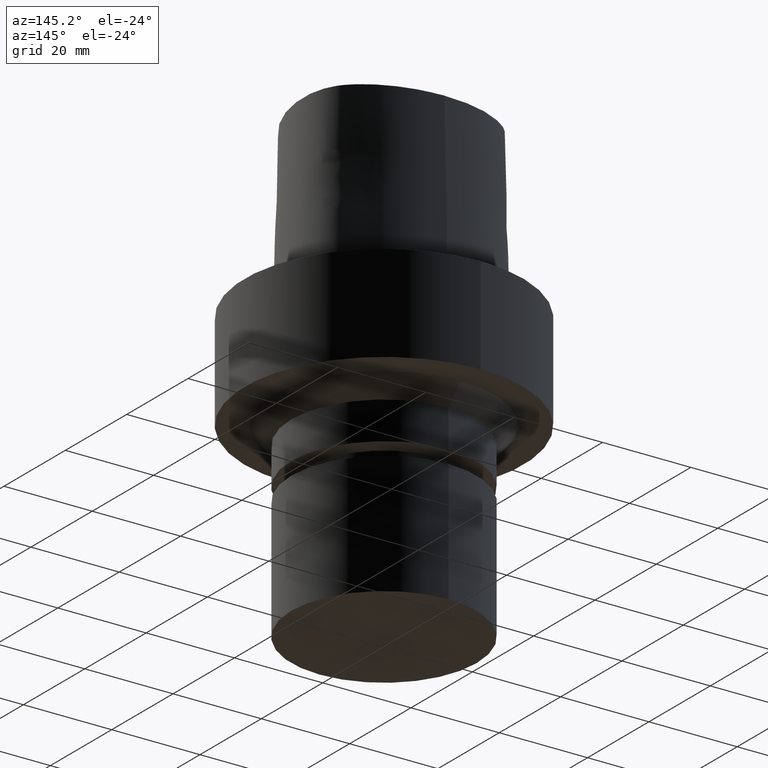
[diagram: clean part render]
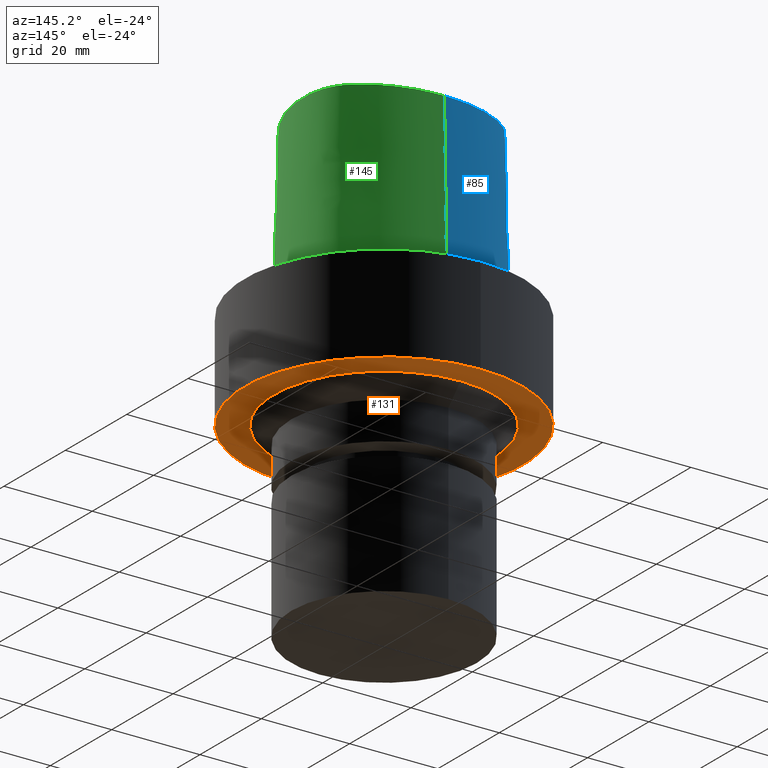
[diagram: same view with three faces highlighted in distinct colors, each labeled with its STEP entity id]
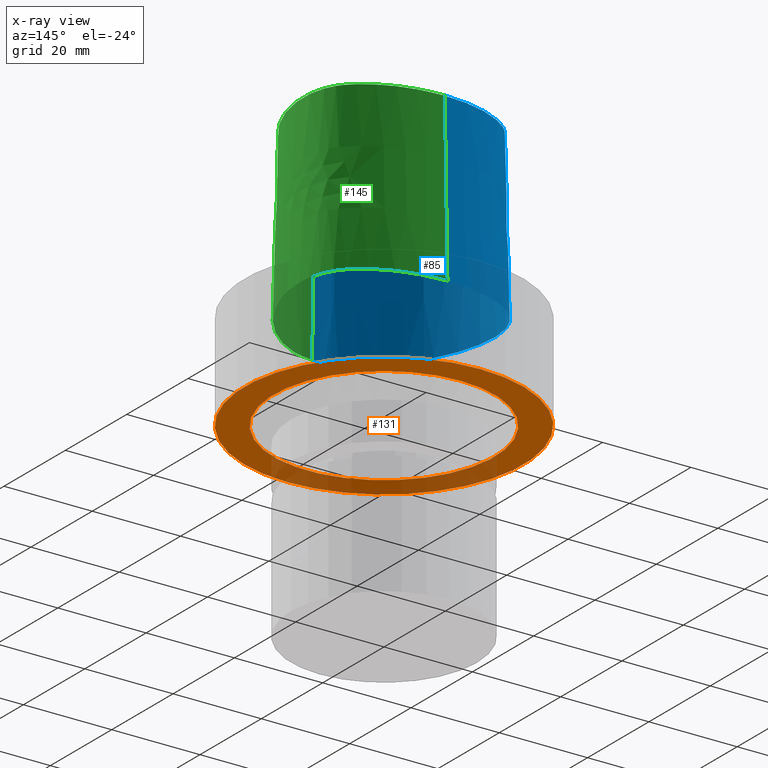
[diagram: x-ray of the same camera — body ghosted, the three highlighted faces saturated]
A machine part, auxiliary view with three faces highlighted in distinct colors.
The next image is the same camera in x-ray (body ghosted, the three faces saturated) — at least one of them is partly hidden behind the body in this view.
Their STEP definitions:

[orange] entity #131 — the highlighted planar face has unit normal (0, -0, -1).
#125=EDGE_CURVE('Unnamed[1]',#266,#266,#267,.T.);
#131=ADVANCED_FACE('Unnamed[1]',(#274,#275),#276,.T.);
#169=EDGE_CURVE('Unnamed[1]',#332,#332,#333,.T.);
#266=VERTEX_POINT('',#551);
#267=CIRCLE('',#552,31.5);
#274=FACE_BOUND('',#561,.T.);
#275=FACE_OUTER_BOUND('',#562,.T.);
#276=PLANE('',#563);
#332=VERTEX_POINT('',#730);
#333=CIRCLE('',#731,25.0000000000002);
#551=CARTESIAN_POINT('',(1.34711147906212E-015,31.5,-22.0000000000006));
#552=AXIS2_PLACEMENT_3D('',#810,#811,#812);
#561=EDGE_LOOP('',(#819));
#562=EDGE_LOOP('',(#820));
#563=AXIS2_PLACEMENT_3D('',#821,#822,#823);
#730=CARTESIAN_POINT('',(1.34711147906212E-015,25.0000000000003,-22.0000000000005));
#731=AXIS2_PLACEMENT_3D('',#881,#882,#883);
#810=CARTESIAN_POINT('',(1.34711147906212E-015,2.69422295812425E-015,-22.0000000000006));
#811=DIRECTION('',(6.12323399573677E-017,1.22464679914735E-016,-1.0));
#812=DIRECTION('',(-1.23259516440783E-032,1.0,1.22464679914735E-016));
#819=ORIENTED_EDGE('',*,*,#169,.F.);
#820=ORIENTED_EDGE('',*,*,#125,.T.);
#821=CARTESIAN_POINT('',(1.34711147906212E-015,28.2500000000001,-22.0000000000005));
#822=DIRECTION('',(6.12323399573677E-017,-5.88982000728634E-015,-1.0));
#823=DIRECTION('',(3.55820308243094E-031,1.0,-5.88982000728634E-015));
#881=CARTESIAN_POINT('',(1.34711147906212E-015,2.69422295812424E-015,-22.0000000000005));
#882=DIRECTION('',(6.12323399573677E-017,1.22464679914735E-016,-1.0));
#883=DIRECTION('',(-1.23259516440783E-032,1.0,1.22464679914735E-016));

[blue] entity #85 — the highlighted face is a freeform B-spline surface patch.
#85=ADVANCED_FACE('Unnamed[1]',(#211),#212,.T.);
#90=EDGE_CURVE('Unnamed[1]',#207,#203,#218,.T.);
#101=EDGE_CURVE('Unnamed[1]',#232,#203,#233,.T.);
#147=EDGE_CURVE('Unnamed[1]',#288,#232,#298,.T.);
#149=EDGE_CURVE('Unnamed[1]',#207,#288,#300,.T.);
#203=VERTEX_POINT('',#364);
#207=VERTEX_POINT('',#369);
#211=FACE_OUTER_BOUND('',#375,.T.);
#212=B_SPLINE_SURFACE_WITH_KNOTS('',3,3,((#376,#377,#378,#379),(#380,#381,#382,#383),(#384,#385,#386,#387),(#388,#389,#390,#391),(#392,#393,#394,#395),(#396,#397,#398,#399),(#400,#401,#402,#403),(#404,#405,#406,#407),(#408,#409,#410,#411),(#412,#413,#414,#415),(#416,#417,#418,#419),(#420,#421,#422,#423),(#424,#425,#426,#427),(#428,#429,#430,#431),(#432,#433,#434,#435),(#436,#437,#438,#439),(#440,#441,#442,#443),(#444,#445,#446,#447)),.UNSPECIFIED.,.F.,.F.,.F.,(4,1,1,1,1,1,1,1,1,2,1,1,1,1,4),(4,4),(-6.6151339308743,-6.20168806019465,-5.78824218951501,-5.37479631883537,-4.96135044815572,-4.13445870679644,-3.30756696543715,-2.89412109475751,-2.48067522407786,-2.06722935339822,-1.65378348271857,-1.24033761203893,-0.826891741359287,-0.413445870679644,0.0),(-3.8,0.0),.UNSPECIFIED.);
#218=LINE('',#455,#456);
#232=VERTEX_POINT('',#474);
#233=B_SPLINE_CURVE_WITH_KNOTS('',3,(#475,#476,#477,#478,#479,#480,#481,#482,#483,#484,#485,#486,#487,#488,#489,#490,#491,#492),.UNSPECIFIED.,.F.,.F.,(4,1,1,1,1,1,1,1,1,2,1,1,1,1,4),(-6.6151339308743,-6.20168806019465,-5.78824218951501,-5.37479631883537,-4.96135044815572,-4.13445870679644,-3.30756696543715,-2.89412109475751,-2.48067522407786,-2.06722935339822,-1.65378348271857,-1.24033761203893,-0.826891741359287,-0.413445870679644,0.0),.UNSPECIFIED.);
#288=VERTEX_POINT('',#578);
#298=LINE('',#672,#673);
#300=B_SPLINE_CURVE_WITH_KNOTS('',3,(#676,#677,#678,#679,#680,#681,#682,#683,#684,#685,#686,#687,#688,#689,#690,#691),.UNSPECIFIED.,.F.,.F.,(4,1,1,1,1,1,1,1,1,1,1,1,1,4),(0.0,0.447924670568964,0.9388024242536,1.50591409090711,2.07314340012323,2.72424957442464,3.2253501842849,3.80982102049476,4.34867996267067,4.85900173381144,5.37972031856977,6.03459825488646,6.61113557741484,6.61513393087395),.UNSPECIFIED.);
#364=CARTESIAN_POINT('',(-0.045171994691285,20.6766009553285,1.6755590516169E-031));
#369=CARTESIAN_POINT('',(-0.001218547003662,19.7276821925089,38.0));
#375=EDGE_LOOP('',(#754,#755,#756,#757));
#376=CARTESIAN_POINT('',(0.038736923393866,-22.5191997536361,38.0));
#377=CARTESIAN_POINT('',(0.04035580478973,-22.8358410047159,25.3333333333066));
#378=CARTESIAN_POINT('',(0.041974686185626,-23.1524822558133,12.6666666666934));
#379=CARTESIAN_POINT('',(0.04359356758149,-23.4691235068931,7.78075697532443E-032));
#380=CARTESIAN_POINT('',(-1.33786123484754,-22.5261650259856,38.0));
#381=CARTESIAN_POINT('',(-1.38240731367927,-22.8430399310626,25.3333333333066));
#382=CARTESIAN_POINT('',(-1.42695339249092,-23.1599147815484,12.6666666666934));
#383=CARTESIAN_POINT('',(-1.4714994713963,-23.4767895315797,2.46519032881566E-032));
#384=CARTESIAN_POINT('',(-4.08909358431842,-21.9268839879558,38.0));
#385=CARTESIAN_POINT('',(-4.20580731135515,-22.2249725500078,25.3333333333066));
#386=CARTESIAN_POINT('',(-4.32252104640446,-22.5230611651922,12.6666666666934));
#387=CARTESIAN_POINT('',(-4.43923476371401,-22.821149804767,-4.93038065763132E-032));
#388=CARTESIAN_POINT('',(-7.8333083619947,-19.9973514861616,38.0));
#389=CARTESIAN_POINT('',(-8.00568301809614,-20.2649260859405,25.3333333333066));
#390=CARTESIAN_POINT('',(-8.1780576640789,-20.532500564315,12.6666666666934));
#391=CARTESIAN_POINT('',(-8.35043230079961,-20.8000751253325,-9.86076131526265E-032));
#392=CARTESIAN_POINT('',(-11.1035071147626,-17.450554957873,38.0));
#393=CARTESIAN_POINT('',(-11.3173048160562,-17.6855739222454,25.3333333333066));
#394=CARTESIAN_POINT('',(-11.5311025116181,-17.9205928617968,12.6666666666934));
#395=CARTESIAN_POINT('',(-11.744900222602,-18.1556117874078,-1.97215226305253E-031));
#396=CARTESIAN_POINT('',(-14.9379535189057,-13.461132049697,38.0));
#397=CARTESIAN_POINT('',(-15.191622410671,-13.6542981711372,25.3333333333066));
#398=CARTESIAN_POINT('',(-15.4452913389853,-13.8474645327131,12.6666666666934));
#399=CARTESIAN_POINT('',(-15.6989602501314,-14.0406306929147,-1.97215226305253E-031));
#400=CARTESIAN_POINT('',(-18.6681263017223,-7.59391757463204,38.0));
#401=CARTESIAN_POINT('',(-18.9571800800711,-7.73136168081928,25.3333333333066));
#402=CARTESIAN_POINT('',(-19.2462337287194,-7.86880572399774,12.6666666666934));
#403=CARTESIAN_POINT('',(-19.5352875070682,-8.00624990770787,1.97215226305253E-031));
#404=CARTESIAN_POINT('',(-20.7857899858339,-0.952862819790525,38.0));
#405=CARTESIAN_POINT('',(-21.0973808305434,-1.02218087467418,25.3333333333066));
#406=CARTESIAN_POINT('',(-21.408971677436,-1.09149899580772,12.6666666666934));
#407=CARTESIAN_POINT('',(-21.7205626190491,-1.16081708945282,0.0));
#408=CARTESIAN_POINT('',(-21.2911760556836,4.5469215763113,38.0));
#409=CARTESIAN_POINT('',(-21.610337904926,4.54783292082248,25.3333333333066));
#410=CARTESIAN_POINT('',(-21.9294998290918,4.54874426225691,12.6666666666934));
#411=CARTESIAN_POINT('',(-22.2486616783342,4.54965558738736,0.0));
#412=CARTESIAN_POINT('',(-20.7345309521958,8.74909381391006,38.0));
#413=CARTESIAN_POINT('',(-21.0445680426217,8.83349432450556,25.3333333333066));
#414=CARTESIAN_POINT('',(-21.3546050933631,8.91789488065068,12.6666666666934));
#415=CARTESIAN_POINT('',(-21.6646421256468,9.00229539124618,0.0));
#416=CARTESIAN_POINT('',(-19.5531512296439,11.3174844040833,38.0));
#417=CARTESIAN_POINT('',(-19.8336219699984,11.4710077674213,25.3333333333066));
#418=CARTESIAN_POINT('',(-20.1140927680763,11.6245311337623,12.6666666666934));
#419=CARTESIAN_POINT('',(-20.3945635471922,11.7780544971003,0.0));
#420=CARTESIAN_POINT('',(-17.9100913688793,13.524027510437,38.0));
#421=CARTESIAN_POINT('',(-18.1375785458768,13.7487051053655,25.3333333333066));
#422=CARTESIAN_POINT('',(-18.365065665211,13.9733826973296,12.6666666666934));
#423=CARTESIAN_POINT('',(-18.5925528034471,14.1980602922581,0.0));
#424=CARTESIAN_POINT('',(-15.7996349656398,15.3762170634413,38.0));
#425=CARTESIAN_POINT('',(-15.9739761051783,15.6434029846179,25.3333333333066));
#426=CARTESIAN_POINT('',(-16.1483172726872,15.9105889315134,12.6666666666934));
#427=CARTESIAN_POINT('',(-16.3226584122258,16.1777748720707,0.0));
#428=CARTESIAN_POINT('',(-12.1175640002064,17.3825162484012,38.0));
#429=CARTESIAN_POINT('',(-12.2475895903055,17.6724842099619,25.3333333333066));
#430=CARTESIAN_POINT('',(-12.3776152070492,17.9624521925696,12.6666666666934));
#431=CARTESIAN_POINT('',(-12.5076407874579,18.2524201541303,9.86076131526265E-032));
#432=CARTESIAN_POINT('',(-8.21761151654222,18.7588585989994,38.0));
#433=CARTESIAN_POINT('',(-8.30099497910627,19.0656105427881,25.3333333333066));
#434=CARTESIAN_POINT('',(-8.38437843913309,19.3723624535439,12.6666666666934));
#435=CARTESIAN_POINT('',(-8.46776192107786,19.679114377952,9.86076131526265E-032));
#436=CARTESIAN_POINT('',(-4.13466093881225,19.5396850837055,38.0));
#437=CARTESIAN_POINT('',(-4.16658562115465,19.8557172636973,25.3333333333066));
#438=CARTESIAN_POINT('',(-4.19851029939059,20.1717494367229,12.6666666666934));
#439=CARTESIAN_POINT('',(-4.23043497193604,20.487781597334,1.97215226305253E-031));
#440=CARTESIAN_POINT('',(-1.37917220403684,19.6638560588908,38.0));
#441=CARTESIAN_POINT('',(-1.39382511685176,19.98016223565,25.3333333333066));
#442=CARTESIAN_POINT('',(-1.40847802945569,20.296468399885,12.6666666666934));
#443=CARTESIAN_POINT('',(-1.42313094248379,20.6127745766442,1.10933564796705E-031));
#444=CARTESIAN_POINT('',(-0.001218547003662,19.7276821925089,38.0));
#445=CARTESIAN_POINT('',(-0.015869696232855,20.043988446791,25.3333333333066));
#446=CARTESIAN_POINT('',(-0.030520845462092,20.3602947010464,12.6666666666934));
#447=CARTESIAN_POINT('',(-0.045171994691285,20.6766009553285,1.6755590516169E-031));
#455=CARTESIAN_POINT('',(-0.001218547003662,19.7276821925089,38.0));
#456=VECTOR('',#763,38.0118715498723);
#474=CARTESIAN_POINT('',(0.04359356758149,-23.4691235068931,7.78075697532443E-032));
#475=CARTESIAN_POINT('',(0.04359356758149,-23.4691235068931,7.78075697532443E-032));
#476=CARTESIAN_POINT('',(-1.4714994713963,-23.4767895315797,2.46519032881566E-032));
#477=CARTESIAN_POINT('',(-4.43923476371401,-22.821149804767,-4.93038065763132E-032));
#478=CARTESIAN_POINT('',(-8.35043230079961,-20.8000751253325,-9.86076131526265E-032));
#479=CARTESIAN_POINT('',(-11.744900222602,-18.1556117874078,-1.97215226305253E-031));
#480=CARTESIAN_POINT('',(-15.6989602501314,-14.0406306929147,-1.97215226305253E-031));
#481=CARTESIAN_POINT('',(-19.5352875070682,-8.00624990770787,1.97215226305253E-031));
#482=CARTESIAN_POINT('',(-21.7205626190491,-1.16081708945282,0.0));
#483=CARTESIAN_POINT('',(-22.2486616783342,4.54965558738736,0.0));
#484=CARTESIAN_POINT('',(-21.6646421256468,9.00229539124618,0.0));
#485=CARTESIAN_POINT('',(-20.3945635471922,11.7780544971003,0.0));
#486=CARTESIAN_POINT('',(-18.5925528034471,14.1980602922581,0.0));
#487=CARTESIAN_POINT('',(-16.3226584122258,16.1777748720707,0.0));
#488=CARTESIAN_POINT('',(-12.5076407874579,18.2524201541303,9.86076131526265E-032));
#489=CARTESIAN_POINT('',(-8.46776192107786,19.679114377952,9.86076131526265E-032));
#490=CARTESIAN_POINT('',(-4.23043497193604,20.487781597334,1.97215226305253E-031));
#491=CARTESIAN_POINT('',(-1.42313094248379,20.6127745766442,1.10933564796705E-031));
#492=CARTESIAN_POINT('',(-0.045171994691285,20.6766009553285,1.6755590516169E-031));
#578=CARTESIAN_POINT('',(0.038736923393866,-22.5191997536361,38.0));
#672=CARTESIAN_POINT('',(0.038736923393866,-22.5191997536361,38.0));
#673=VECTOR('',#842,38.0118715498723);
#676=CARTESIAN_POINT('',(-0.001218547003662,19.7276821925089,38.0));
#677=CARTESIAN_POINT('',(-1.49408492138443,19.6585333605309,38.0));
#678=CARTESIAN_POINT('',(-4.62297391420352,19.513604770166,38.0));
#679=CARTESIAN_POINT('',(-9.56160616752212,18.4291575730197,38.0));
#680=CARTESIAN_POINT('',(-14.5427684976927,16.2697452580488,38.0));
#681=CARTESIAN_POINT('',(-19.4315563551602,12.5302108980807,38.0));
#682=CARTESIAN_POINT('',(-21.306358833612,6.76352894547076,38.0));
#683=CARTESIAN_POINT('',(-21.0724946936277,0.957075236984038,38.0));
#684=CARTESIAN_POINT('',(-19.7876470880144,-4.34628503581652,38.0));
#685=CARTESIAN_POINT('',(-17.5396999600095,-9.33314444653089,38.0));
#686=CARTESIAN_POINT('',(-14.645447733857,-13.7185760345629,38.0));
#687=CARTESIAN_POINT('',(-10.7996726536643,-17.856257282137,38.0));
#688=CARTESIAN_POINT('',(-6.00479510196376,-21.2687382067675,38.0));
#689=CARTESIAN_POINT('',(-1.90747171908525,-22.5250621415864,38.0));
#690=CARTESIAN_POINT('',(0.025424107066464,-22.5192678176378,38.0));
#691=CARTESIAN_POINT('',(0.038736923394311,-22.519199753636,38.0));
#754=ORIENTED_EDGE('',*,*,#101,.F.);
#755=ORIENTED_EDGE('',*,*,#147,.F.);
#756=ORIENTED_EDGE('',*,*,#149,.F.);
#757=ORIENTED_EDGE('',*,*,#90,.T.);
#763=DIRECTION('',(-0.001156308434589,0.02496374748543,-0.999687688361864));
#842=DIRECTION('',(0.000127766510556,-0.024990186342461,-0.999687688361864));

[green] entity #145 — the highlighted face is a freeform B-spline surface patch.
#82=EDGE_CURVE('Unnamed[1]',#207,#204,#208,.T.);
#116=EDGE_CURVE('Unnamed[1]',#204,#232,#254,.T.);
#139=EDGE_CURVE('Unnamed[1]',#288,#207,#289,.T.);
#145=ADVANCED_FACE('Unnamed[1]',(#295),#296,.T.);
#147=EDGE_CURVE('Unnamed[1]',#288,#232,#298,.T.);
#204=VERTEX_POINT('',#365);
#207=VERTEX_POINT('',#369);
#208=LINE('',#370,#371);
#232=VERTEX_POINT('',#474);
#254=B_SPLINE_CURVE_WITH_KNOTS('',3,(#519,#520,#521,#522,#523,#524,#525,#526,#527,#528,#529,#530,#531,#532,#533,#534,#535),.UNSPECIFIED.,.F.,.F.,(4,1,1,1,1,1,1,1,1,1,1,1,1,1,4),(-13.2302678617486,-12.816821991069,-12.4033761203893,-11.9899302497097,-11.57648437903,-11.1630385083504,-10.9563155730106,-10.7495926376707,-10.3361467669911,-9.92270089631145,-9.09580915495216,-8.26891741359287,-7.44202567223358,-7.02857980155394,-6.6151339308743),.UNSPECIFIED.);
#288=VERTEX_POINT('',#578);
#289=B_SPLINE_CURVE_WITH_KNOTS('',3,(#579,#580,#581,#582,#583,#584,#585,#586,#587,#588,#589,#590,#591,#592,#593,#594),.UNSPECIFIED.,.F.,.F.,(4,1,1,1,1,1,1,1,1,1,1,1,1,4),(6.61513393087476,6.99917207152274,7.48193246986995,7.96289324787093,8.45540287038584,9.10291653679981,9.67129810936083,10.1618749681153,10.6358867802489,11.1080734988593,11.6043706019633,12.09451993853,12.6985979284494,13.2302678617486),.UNSPECIFIED.);
#295=FACE_OUTER_BOUND('',#601,.T.);
#296=B_SPLINE_SURFACE_WITH_KNOTS('',3,3,((#602,#603,#604,#605),(#606,#607,#608,#609),(#610,#611,#612,#613),(#614,#615,#616,#617),(#618,#619,#620,#621),(#622,#623,#624,#625),(#626,#627,#628,#629),(#630,#631,#632,#633),(#634,#635,#636,#637),(#638,#639,#640,#641),(#642,#643,#644,#645),(#646,#647,#648,#649),(#650,#651,#652,#653),(#654,#655,#656,#657),(#658,#659,#660,#661),(#662,#663,#664,#665),(#666,#667,#668,#669)),.UNSPECIFIED.,.F.,.F.,.F.,(4,1,1,1,1,1,1,1,1,1,1,1,1,1,4),(4,4),(-13.2302678617486,-12.816821991069,-12.4033761203893,-11.9899302497097,-11.57648437903,-11.1630385083504,-10.9563155730106,-10.7495926376707,-10.3361467669911,-9.92270089631145,-9.09580915495216,-8.26891741359287,-7.44202567223358,-7.02857980155394,-6.6151339308743),(-3.8,0.0),.UNSPECIFIED.);
#298=LINE('',#672,#673);
#365=CARTESIAN_POINT('',(0.044682985379347,20.6765087343109,1.61778115328528E-031));
#369=CARTESIAN_POINT('',(-0.001218547003662,19.7276821925089,38.0));
#370=CARTESIAN_POINT('',(-0.001218547003662,19.7276821925089,38.0));
#371=VECTOR('',#752,38.0118715503078);
#474=CARTESIAN_POINT('',(0.04359356758149,-23.4691235068931,7.78075697532443E-032));
#519=CARTESIAN_POINT('',(0.044682985379347,20.6765087343109,1.61778115328528E-031));
#520=CARTESIAN_POINT('',(1.42379272427753,20.6097915814392,8.62816615085482E-032));
#521=CARTESIAN_POINT('',(4.2230955003445,20.4837538303966,1.4791141972894E-031));
#522=CARTESIAN_POINT('',(8.47220762821777,19.6890432607088,9.86076131526265E-032));
#523=CARTESIAN_POINT('',(12.5141247708253,18.2434968480404,0.0));
#524=CARTESIAN_POINT('',(16.3038624872874,16.1734192182143,1.97215226305253E-031));
#525=CARTESIAN_POINT('',(19.1446913988473,13.7036723639434,-1.97215226305253E-031));
#526=CARTESIAN_POINT('',(20.7319894342149,11.1014620996188,0.0));
#527=CARTESIAN_POINT('',(21.7831756505763,8.28099229708081,-1.97215226305253E-031));
#528=CARTESIAN_POINT('',(22.2258240701438,4.60865440596506,0.0));
#529=CARTESIAN_POINT('',(21.7436130080666,-1.11326526354485,0.0));
#530=CARTESIAN_POINT('',(19.5519487660502,-7.95432366164584,0.0));
#531=CARTESIAN_POINT('',(14.9574167123838,-15.2089785567293,0.0));
#532=CARTESIAN_POINT('',(9.66840283021945,-20.0827414369705,-9.86076131526265E-032));
#533=CARTESIAN_POINT('',(4.51628650521788,-22.7946374572188,-9.86076131526265E-032));
#534=CARTESIAN_POINT('',(1.55867251738073,-23.4612972770043,-1.23259516440783E-032));
#535=CARTESIAN_POINT('',(0.04359356758149,-23.4691235068931,7.78075697532443E-032));
#578=CARTESIAN_POINT('',(0.038736923393866,-22.5191997536361,38.0));
#579=CARTESIAN_POINT('',(0.038736923394311,-22.519199753636,38.0));
#580=CARTESIAN_POINT('',(1.31742058183662,-22.512662269405,38.0));
#581=CARTESIAN_POINT('',(4.2093773447498,-21.9116226439989,38.0));
#582=CARTESIAN_POINT('',(8.20895504542113,-19.7798683845067,38.0));
#583=CARTESIAN_POINT('',(11.9784633234593,-16.681663904162,38.0));
#584=CARTESIAN_POINT('',(15.5308821579362,-12.5807487594113,38.0));
#585=CARTESIAN_POINT('',(18.4566248438667,-7.64932246015528,38.0));
#586=CARTESIAN_POINT('',(20.4036090752029,-2.27012499825289,38.0));
#587=CARTESIAN_POINT('',(21.2357187429189,2.79891401173156,38.0));
#588=CARTESIAN_POINT('',(21.0811206267748,7.62543090736657,38.0));
#589=CARTESIAN_POINT('',(19.3383577336563,12.2772250726194,38.0));
#590=CARTESIAN_POINT('',(15.5796322014404,15.5799672120682,38.0));
#591=CARTESIAN_POINT('',(10.8392956074438,17.9834601687347,38.0));
#592=CARTESIAN_POINT('',(5.56068045850571,19.4586143858472,38.0));
#593=CARTESIAN_POINT('',(1.77223893711014,19.6418877095654,38.0));
#594=CARTESIAN_POINT('',(-0.001218367817519,19.7276822012873,38.0));
#601=EDGE_LOOP('',(#838,#839,#840,#841));
#602=CARTESIAN_POINT('',(-0.001218367817519,19.7276822012873,38.0));
#603=CARTESIAN_POINT('',(0.014082083248157,20.0439577123075,25.3333333333066));
#604=CARTESIAN_POINT('',(0.029382534313671,20.3602332232908,12.6666666666934));
#605=CARTESIAN_POINT('',(0.044682985379347,20.6765087343109,1.61778115328528E-031));
#606=CARTESIAN_POINT('',(1.37788651195108,19.6609652834875,38.0));
#607=CARTESIAN_POINT('',(1.3931885827258,19.9772407169847,25.3333333333066));
#608=CARTESIAN_POINT('',(1.40849065356095,20.2935162254648,12.6666666666934));
#609=CARTESIAN_POINT('',(1.42379272427753,20.6097915814392,8.62816615085482E-032));
#610=CARTESIAN_POINT('',(4.135446440878,19.5347778787784,38.0));
#611=CARTESIAN_POINT('',(4.16466278851883,19.8511031866125,25.3333333333066));
#612=CARTESIAN_POINT('',(4.1938791526746,20.1674284644204,12.6666666666934));
#613=CARTESIAN_POINT('',(4.2230955003445,20.4837538303966,1.4791141972894E-031));
#614=CARTESIAN_POINT('',(8.213607363795,18.7706026638736,38.0));
#615=CARTESIAN_POINT('',(8.29980745008421,19.0767495109635,25.3333333333066));
#616=CARTESIAN_POINT('',(8.38600751285747,19.3828964329996,12.6666666666934));
#617=CARTESIAN_POINT('',(8.47220762821777,19.6890432607088,9.86076131526265E-032));
#618=CARTESIAN_POINT('',(12.1316338645671,17.3698624840857,38.0));
#619=CARTESIAN_POINT('',(12.2591308270381,17.6610739397708,25.3333333333066));
#620=CARTESIAN_POINT('',(12.3866278083543,17.9522853923553,12.6666666666934));
#621=CARTESIAN_POINT('',(12.5141247708253,18.2434968480404,0.0));
#622=CARTESIAN_POINT('',(15.7706546153679,15.3789501349612,38.0));
#623=CARTESIAN_POINT('',(15.9483905900895,15.6437731794811,25.3333333333066));
#624=CARTESIAN_POINT('',(16.1261265513272,15.9085961736944,12.6666666666934));
#625=CARTESIAN_POINT('',(16.3038624872874,16.1734192182143,1.97215226305253E-031));
#626=CARTESIAN_POINT('',(18.4265894256284,13.0570022172893,38.0));
#627=CARTESIAN_POINT('',(18.6659567517146,13.2725589420689,25.3333333333066));
#628=CARTESIAN_POINT('',(18.9053240921419,13.4881156488541,12.6666666666934));
#629=CARTESIAN_POINT('',(19.1446913988473,13.7036723639434,-1.97215226305253E-031));
#630=CARTESIAN_POINT('',(19.8679958653038,10.6923771981998,38.0));
#631=CARTESIAN_POINT('',(20.1559937048299,10.8287388264873,25.3333333333066));
#632=CARTESIAN_POINT('',(20.4439915656177,10.965100461641,12.6666666666934));
#633=CARTESIAN_POINT('',(20.7319894342149,11.1014620996188,0.0));
#634=CARTESIAN_POINT('',(20.8470867582337,8.07149548576131,38.0));
#635=CARTESIAN_POINT('',(21.1591164072431,8.14132775555392,25.3333333333066));
#636=CARTESIAN_POINT('',(21.4711459821861,8.21116003697855,12.6666666666934));
#637=CARTESIAN_POINT('',(21.7831756505763,8.28099229708081,-1.97215226305253E-031));
#638=CARTESIAN_POINT('',(21.2693244256982,4.61157245650171,38.0));
#639=CARTESIAN_POINT('',(21.5881576801997,4.6105997689982,25.3333333333066));
#640=CARTESIAN_POINT('',(21.9069908544037,4.60962709346857,12.6666666666934));
#641=CARTESIAN_POINT('',(22.2258240701438,4.60865440596506,0.0));
#642=CARTESIAN_POINT('',(20.8071610855575,-0.912828649855193,38.0));
#643=CARTESIAN_POINT('',(21.119311671178,-0.979640884839481,25.3333333333066));
#644=CARTESIAN_POINT('',(21.4314624224461,-1.04645306732201,12.6666666666934));
#645=CARTESIAN_POINT('',(21.7436130080666,-1.11326526354485,0.0));
#646=CARTESIAN_POINT('',(18.6841935581315,-7.54428794252837,38.0));
#647=CARTESIAN_POINT('',(18.9734452551861,-7.6809665891091,25.3333333333066));
#648=CARTESIAN_POINT('',(19.2626970689956,-7.81764505382656,12.6666666666934));
#649=CARTESIAN_POINT('',(19.5519487660502,-7.95432366164584,0.0));
#650=CARTESIAN_POINT('',(14.2175552814,-14.5971504342323,38.0));
#651=CARTESIAN_POINT('',(14.4641757465198,-14.8010930946929,25.3333333333066));
#652=CARTESIAN_POINT('',(14.710796247264,-15.0050359737917,12.6666666666934));
#653=CARTESIAN_POINT('',(14.9574167123838,-15.2089785567293,0.0));
#654=CARTESIAN_POINT('',(9.0844808732933,-19.3179298129689,38.0));
#655=CARTESIAN_POINT('',(9.27912152349017,-19.572866915557,25.3333333333066));
#656=CARTESIAN_POINT('',(9.47376218971294,-19.827804295621,12.6666666666934));
#657=CARTESIAN_POINT('',(9.66840283021945,-20.0827414369705,-9.86076131526265E-032));
#658=CARTESIAN_POINT('',(4.17112919194182,-21.8987568152736,38.0));
#659=CARTESIAN_POINT('',(4.28618163483998,-22.1973837173649,25.3333333333066));
#660=CARTESIAN_POINT('',(4.40123406239433,-22.4960105163661,12.6666666666934));
#661=CARTESIAN_POINT('',(4.51628650521788,-22.7946374572188,-9.86076131526265E-032));
#662=CARTESIAN_POINT('',(1.41533654381097,-22.5120888467812,38.0));
#663=CARTESIAN_POINT('',(1.46311520162011,-22.8284916374445,25.3333333333066));
#664=CARTESIAN_POINT('',(1.51089385942236,-23.144894486341,12.6666666666934));
#665=CARTESIAN_POINT('',(1.55867251738073,-23.4612972770043,-1.23259516440783E-032));
#666=CARTESIAN_POINT('',(0.038736923393866,-22.5191997536361,38.0));
#667=CARTESIAN_POINT('',(0.04035580478973,-22.8358410047159,25.3333333333066));
#668=CARTESIAN_POINT('',(0.041974686185626,-23.1524822558133,12.6666666666934));
#669=CARTESIAN_POINT('',(0.04359356758149,-23.4691235068931,7.78075697532443E-032));
#672=CARTESIAN_POINT('',(0.038736923393866,-22.5191997536361,38.0));
#673=VECTOR('',#842,38.0118715498723);
#752=DIRECTION('',(0.001207557810519,0.024961321374199,-0.999687688350411));
#838=ORIENTED_EDGE('',*,*,#116,.F.);
#839=ORIENTED_EDGE('',*,*,#82,.F.);
#840=ORIENTED_EDGE('',*,*,#139,.F.);
#841=ORIENTED_EDGE('',*,*,#147,.T.);
#842=DIRECTION('',(0.000127766510556,-0.024990186342461,-0.999687688361864));